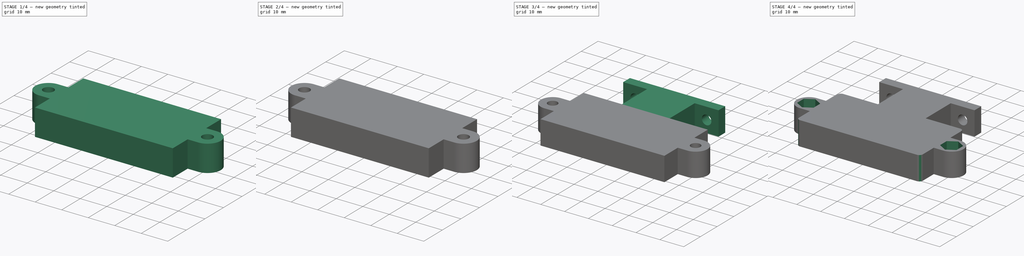
[diagram: build sequence overview — one tinted view per stage of 4, left to right]
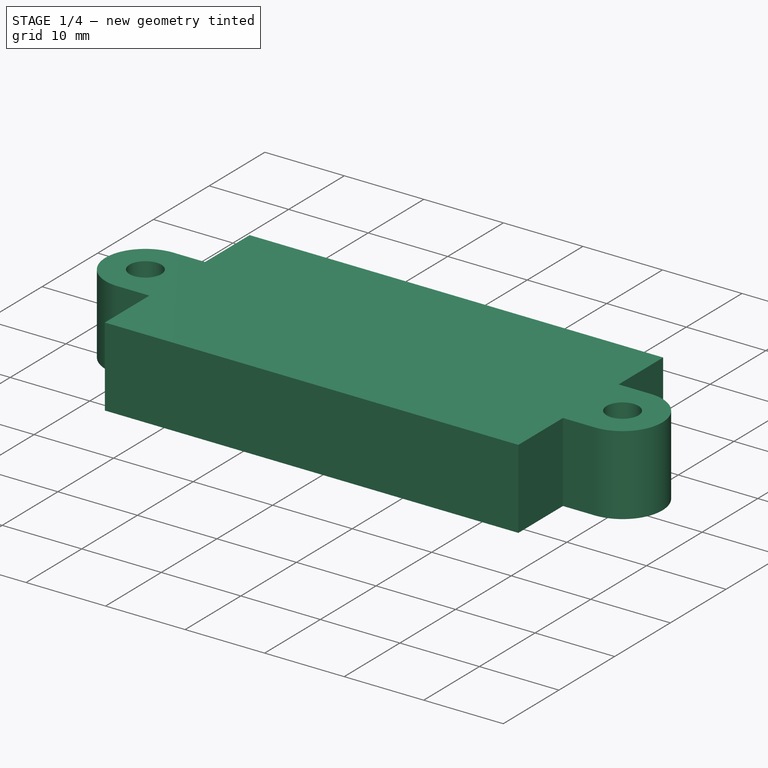
[diagram: stage 1 of 4 — iso view after this stage's code; geometry added in this stage tinted green]
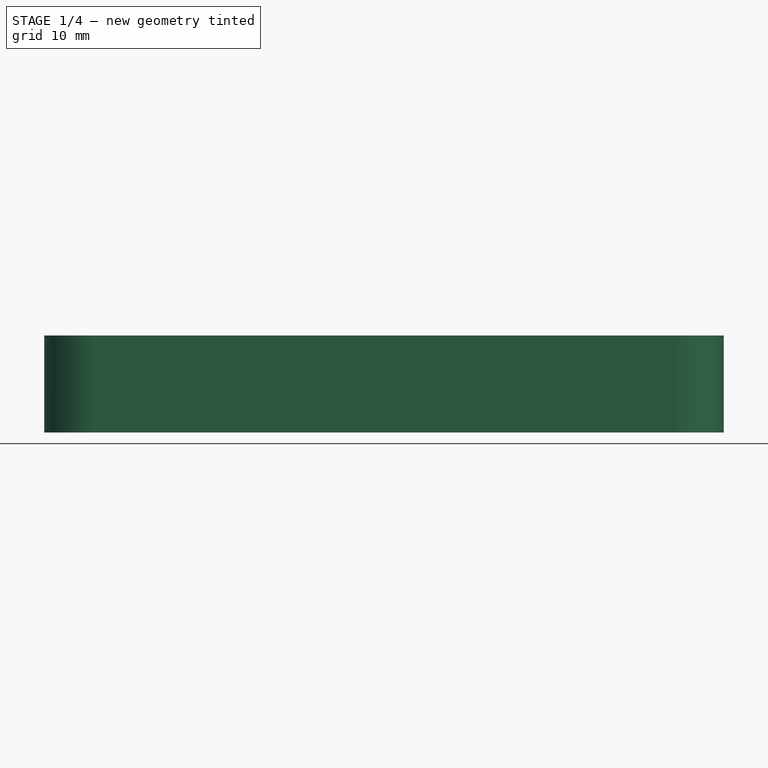
[diagram: stage 1 of 4 — front view after this stage's code; geometry added in this stage tinted green]
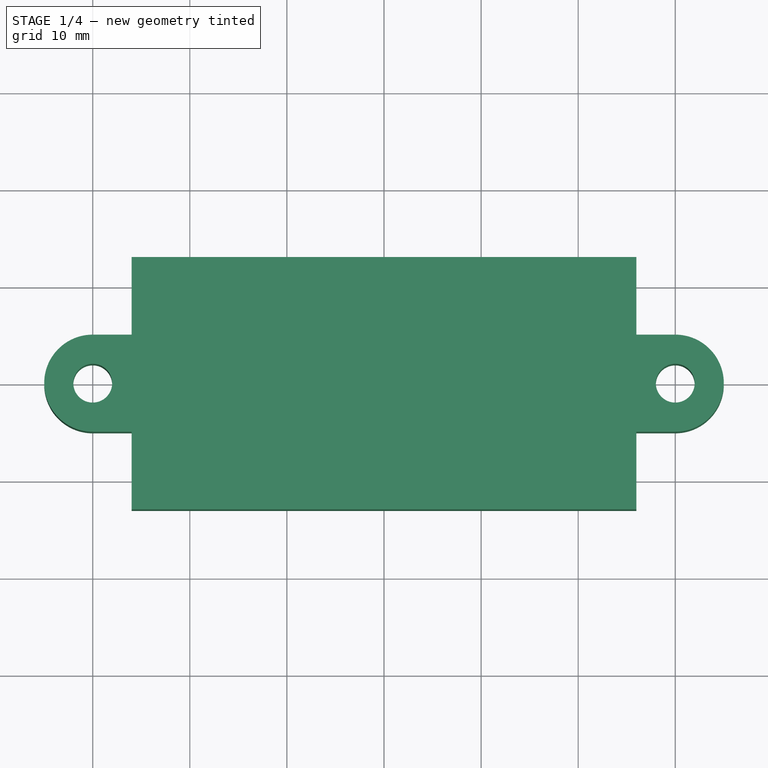
[diagram: stage 1 of 4 — top view after this stage's code; geometry added in this stage tinted green]
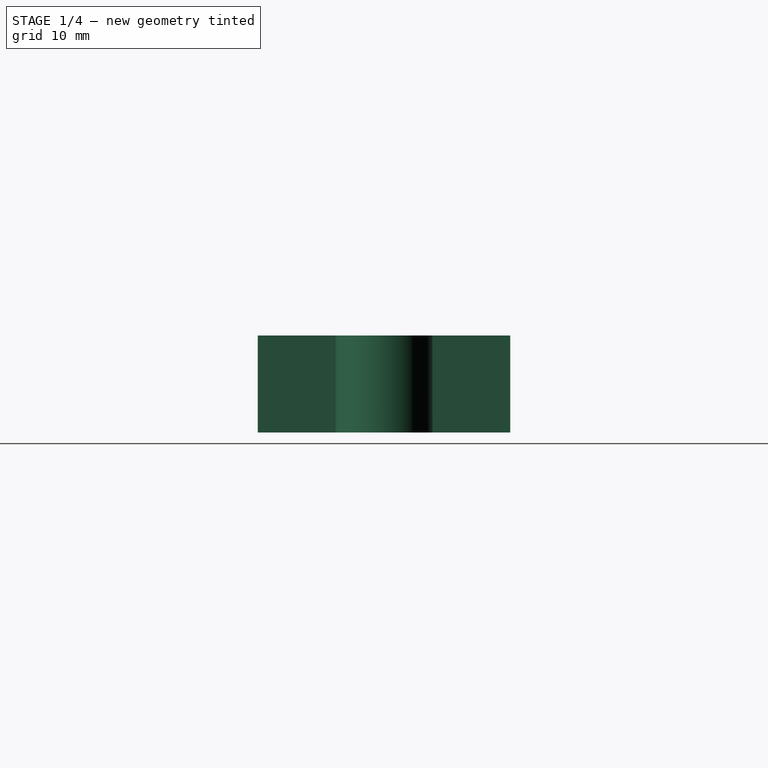
[diagram: stage 1 of 4 — right view after this stage's code; geometry added in this stage tinted green]
FCSTD DOCUMENT  (FreeCAD 1.1R44227 +322 (Git))
Label: box
License: All rights reserved
LicenseURL: https://en.wikipedia.org/wiki/All_rights_reserved
objects: Sketcher::SketchObject×9, PartDesign::Pocket×5, PartDesign::Pad×4, App::Point×1, PartDesign::Fillet×1, PartDesign::Body×1
note: 49 computed .brp shape members not serialized (recipe doc carries the construction recipe); baked Part::Feature solids carry a one-line shape summary decoded from their .brp

FEATURE [Sketcher::SketchObject] Sketch001  label="эскиз002"
  ArcFitTolerance = 0
  ExternalTypes = [0]
  FullyConstrained = true
  MakeInternals = false
  sketch-geometry (14):
    g0: LineSegment StartX=-26 StartY=13 StartZ=0 EndX=26 EndY=13 EndZ=0
    g1: LineSegment StartX=-26 StartY=-13 StartZ=0 EndX=26 EndY=-13 EndZ=0
    g2: Circle CenterX=-30 CenterY=0 CenterZ=0 NormalX=0 NormalY=0 NormalZ=1 AngleXU=0 Radius=2
    g3: ArcOfCircle CenterX=-30 CenterY=0 CenterZ=0 NormalX=0 NormalY=0 NormalZ=1 AngleXU=0 Radius=5 StartAngle=1.5708 EndAngle=4.71239
    g4: LineSegment StartX=-30 StartY=5 StartZ=0 EndX=-26 EndY=5 EndZ=0
    g5: LineSegment StartX=-30 StartY=-5 StartZ=0 EndX=-26 EndY=-5 EndZ=0
    g6: Circle CenterX=30 CenterY=0 CenterZ=0 NormalX=0 NormalY=0 NormalZ=1 AngleXU=0 Radius=2
    g7: ArcOfCircle CenterX=30 CenterY=0 CenterZ=0 NormalX=0 NormalY=0 NormalZ=1 AngleXU=0 Radius=5 StartAngle=4.71239 EndAngle=7.85398
    g8: LineSegment StartX=30 StartY=5 StartZ=0 EndX=26 EndY=5 EndZ=0
    g9: LineSegment StartX=30 StartY=-5 StartZ=0 EndX=26 EndY=-5 EndZ=0
    g10: LineSegment StartX=-26 StartY=13 StartZ=0 EndX=-26 EndY=5 EndZ=0
    g11: LineSegment StartX=-26 StartY=-5 StartZ=0 EndX=-26 EndY=-13 EndZ=0
    g12: LineSegment StartX=26 StartY=13 StartZ=0 EndX=26 EndY=5 EndZ=0
    g13: LineSegment StartX=26 StartY=-5 StartZ=0 EndX=26 EndY=-13 EndZ=0
  constraints (43):
    c: DistanceY(g1,g0) = 26
    c: Horizontal(g0)
    c: DistanceX(g0,g0) = 52
    c: Horizontal(g1)
    c: Distance(g-1,g0) = 13
    c: PointOnObject(g2,g-1)
    c: Diameter(g2) = 4
    c: Distance(g-1,g2) = 30
    c: Coincident(g3,g2)
    c: Radius(g3) = 5
    c: Coincident(g4,g3)
    c: Horizontal(g4)
    c: Coincident(g5,g3)
    c: Horizontal(g5)
    c: DistanceX(g4,g4) = 4
    c: DistanceX(g5,g5) = 4
    c: PointOnObject(g6,g-1)
    c: Diameter(g6) = 4
    c: Distance(g-1,g6) = 30
    c: PointOnObject(g7,g-1)
    c: Radius(g7) = 5
    c: Coincident(g8,g7)
    c: Horizontal(g8)
    c: Coincident(g9,g7)
    c: Horizontal(g9)
    c: DistanceX(g8,g8) = 4
    c: DistanceX(g9,g9) = 4
    c: Distance(g-1,g8) = 5
    c: Distance(g-1,g9) = 5
    c: Coincident(g10,g0)
    c: Coincident(g10,g4)
    c: Vertical(g10)
    c: Coincident(g11,g5)
    c: Coincident(g11,g1)
    c: Vertical(g11)
    c: Coincident(g12,g0)
    c: Coincident(g12,g8)
    c: Vertical(g12)
    c: Coincident(g13,g9)
    c: Coincident(g13,g1)
    c: Vertical(g13)
    c: DistanceY(g10,g10) = 8
    c: Distance(g-1,g11) = 26
FEATURE [PartDesign::Pad] Pad  label="контейнер для датчика"
  Direction = (0,0,1)
  Length = 10
  Length2 = 10
  Profile = -> Sketch001
  ReferenceAxis = -> Sketch001 [N_Axis]
  SideType = 0
  Suppressed = false
  Type = 0
  Type2 = 0
FEATURE [Sketcher::SketchObject] Sketch003  label="эскиз"
  ArcFitTolerance = 0
  ExternalTypes = [0]
  FullyConstrained = true
  MakeInternals = false
  sketch-geometry (4):
    g0: LineSegment StartX=-24 StartY=11 StartZ=0 EndX=24 EndY=11 EndZ=0
    g1: LineSegment StartX=-24 StartY=11 StartZ=0 EndX=-24 EndY=-11 EndZ=0
    g2: LineSegment StartX=24 StartY=11 StartZ=0 EndX=24 EndY=-11 EndZ=0
    g3: LineSegment StartX=-24 StartY=-11 StartZ=0 EndX=24 EndY=-11 EndZ=0
  constraints (12):
    c: Horizontal(g0)
    c: DistanceX(g0,g0) = 48
    c: Coincident(g1,g0)
    c: Vertical(g1)
    c: DistanceY(g1,g1) = 22
    c: Coincident(g2,g0)
    c: Vertical(g2)
    c: Coincident(g3,g1)
    c: Coincident(g3,g2)
    c: Horizontal(g3)
    c: Distance(g-1,g0) = 11
    c: Distance(g-1,g1) = 24
FEATURE [PartDesign::Pocket] Pocket  label="главный вырез"
  AlongSketchNormal = false
  BaseFeature = -> Pad
  Direction = (0,0,-1)
  Length = 14
  Length2 = 5
  Profile = -> Sketch003
  ReferenceAxis = -> Sketch003 [N_Axis]
  SideType = 2
  Suppressed = false
  Type = 0
  Type2 = 0
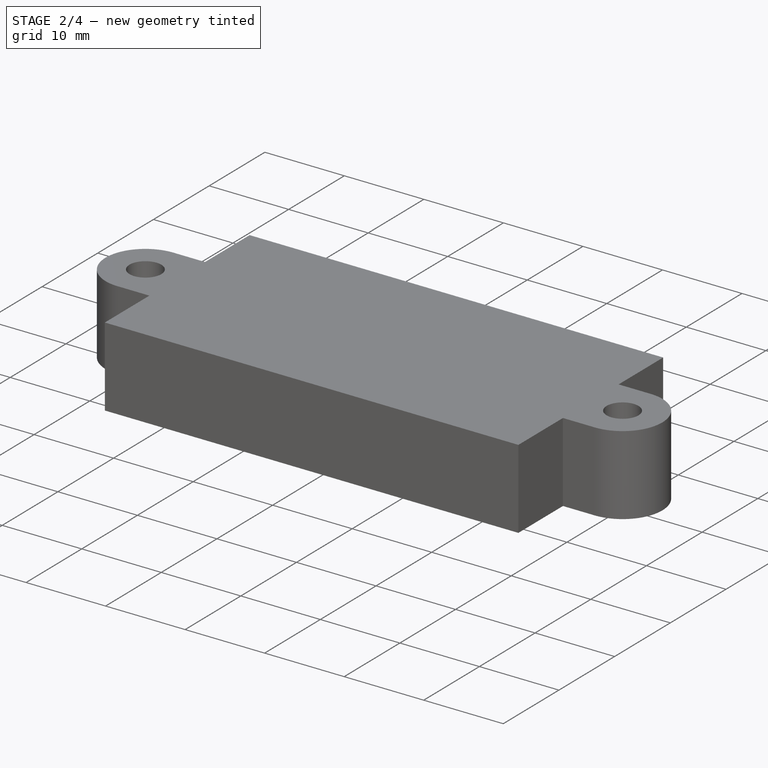
[diagram: stage 2 of 4 — iso view after this stage's code; geometry added in this stage tinted green]
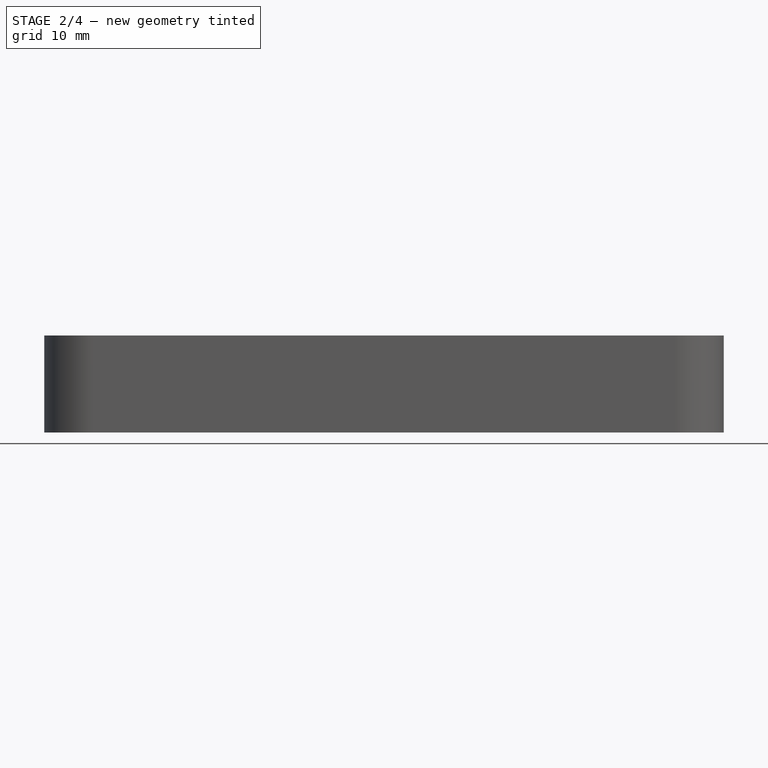
[diagram: stage 2 of 4 — front view after this stage's code; geometry added in this stage tinted green]
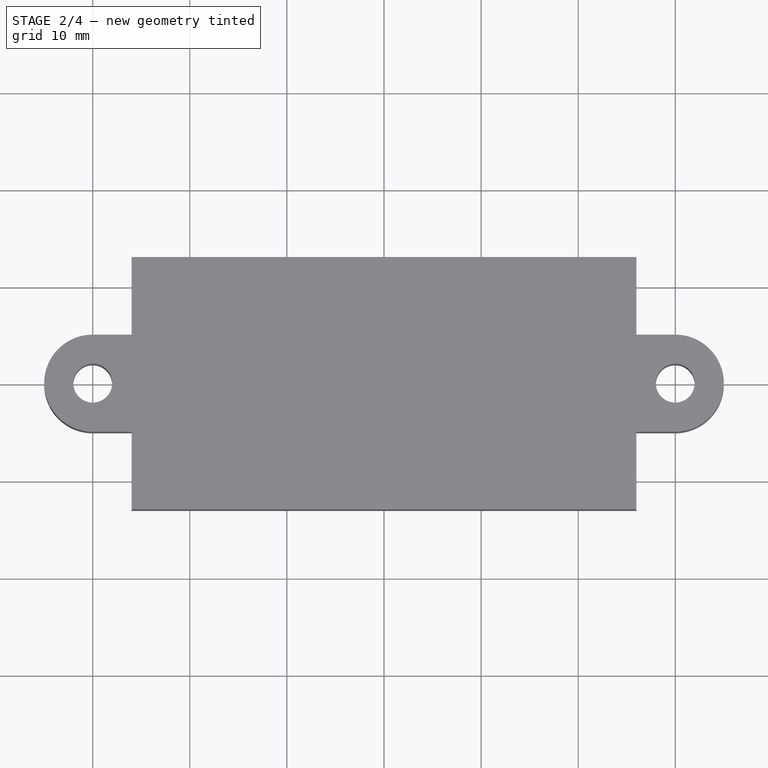
[diagram: stage 2 of 4 — top view after this stage's code; geometry added in this stage tinted green]
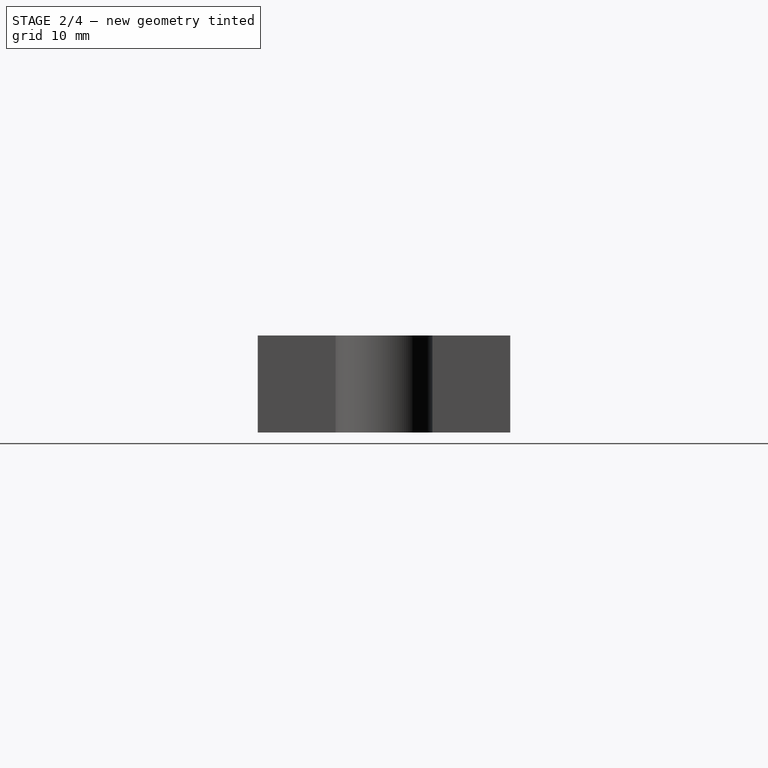
[diagram: stage 2 of 4 — right view after this stage's code; geometry added in this stage tinted green]
FEATURE [Sketcher::SketchObject] Sketch004  label="эскиз001"
  ArcFitTolerance = 0
  ExternalTypes = [0]
  FullyConstrained = true
  MakeInternals = false
  sketch-geometry (8):
    g0: Circle CenterX=-21.25 CenterY=8.5 CenterZ=0 NormalX=0 NormalY=0 NormalZ=1 AngleXU=0 Radius=1
    g1: Circle CenterX=-21.25 CenterY=-8.5 CenterZ=0 NormalX=0 NormalY=0 NormalZ=1 AngleXU=0 Radius=1
    g2: Circle CenterX=21.25 CenterY=8.5 CenterZ=0 NormalX=0 NormalY=0 NormalZ=1 AngleXU=0 Radius=1
    g3: Circle CenterX=21.25 CenterY=-8.5 CenterZ=0 NormalX=0 NormalY=0 NormalZ=1 AngleXU=0 Radius=1
    g4: Circle CenterX=21.25 CenterY=8.5 CenterZ=0 NormalX=0 NormalY=0 NormalZ=1 AngleXU=0 Radius=2
    g5: Circle CenterX=-21.25 CenterY=8.5 CenterZ=0 NormalX=0 NormalY=0 NormalZ=1 AngleXU=0 Radius=2
    g6: Circle CenterX=-21.25 CenterY=-8.5 CenterZ=0 NormalX=0 NormalY=0 NormalZ=1 AngleXU=0 Radius=2
    g7: Circle CenterX=21.25 CenterY=-8.5 CenterZ=0 NormalX=0 NormalY=0 NormalZ=1 AngleXU=0 Radius=2
  constraints (17):
    c: Diameter(g0) = 2
    c: Diameter(g1) = 2
    c: Diameter(g2) = 2
    c: Diameter(g3) = 2
    c: Diameter(g4) = 4
    c: Coincident(g4,g2)
    c: Diameter(g5) = 4
    c: Coincident(g5,g0)
    c: Diameter(g6) = 4
    c: Coincident(g6,g1)
    c: Diameter(g7) = 4
    c: Coincident(g7,g3)
    c: DistanceX(g-2,g0) = -21.25
    c: Distance(g0,g-1) = 8.5
    c: Symmetric(g0,g1,g-1)
    c: Symmetric(g2,g0,g-2)
    c: Symmetric(g1,g3,g-2)
FEATURE [PartDesign::Pad] Pad001  label="стойки"
  BaseFeature = -> Pocket
  Direction = (0,0,1)
  Length = 10
  Length2 = 10
  Profile = -> Sketch004
  ReferenceAxis = -> Sketch004 [N_Axis]
  SideType = 0
  Suppressed = false
  Type = 0
  Type2 = 0
FEATURE [Sketcher::SketchObject] Sketch006  label="внутренняя фаска"
  ArcFitTolerance = 0
  ExternalTypes = [0]
  FullyConstrained = true
  MakeInternals = false
  sketch-geometry (4):
    g0: LineSegment StartX=-25 StartY=12 StartZ=0 EndX=25 EndY=12 EndZ=0
    g1: LineSegment StartX=-25 StartY=-12 StartZ=0 EndX=25 EndY=-12 EndZ=0
    g2: LineSegment StartX=-25 StartY=-12 StartZ=0 EndX=-25 EndY=12 EndZ=0
    g3: LineSegment StartX=25 StartY=-12 StartZ=0 EndX=25 EndY=12 EndZ=0
  constraints (13):
    c: Horizontal(g0)
    c: DistanceX(g0,g0) = 50
    c: Horizontal(g1)
    c: DistanceX(g1,g1) = 50
    c: Vertical(g2)
    c: Vertical(g3)
    c: DistanceY(g2,g2) = 24
    c: DistanceY(g3,g3) = 24
    c: Coincident(g2,g1)
    c: Coincident(g2,g0)
    c: Coincident(g3,g1)
    c: Distance(g-1,g2) = 25
    c: Distance(g-1,g1) = 12
FEATURE [PartDesign::Pocket] Pocket001  label="внутренняя фаска под крышку"
  BaseFeature = -> Pad001
  Direction = (0,0,-1)
  Length = 2
  Length2 = 5
  Profile = -> Sketch006
  ReferenceAxis = -> Sketch006 [N_Axis]
  SideType = 2
  Suppressed = false
  Type = 0
  Type2 = 0
  UseCustomVector = true
FEATURE [Sketcher::SketchObject] Sketch013
  ArcFitTolerance = 0
  AttachmentSupport = -> [Pocket001]
  ExternalTypes = [0]
  FullyConstrained = true
  MakeInternals = false
  MapMode = 5
  Placement = pos=(0,0,0) rot=(1,0,0;3.14159rad)
  sketch-geometry (4):
    g0: LineSegment StartX=-24 StartY=11 StartZ=0 EndX=-24 EndY=-11 EndZ=0
    g1: LineSegment StartX=-24 StartY=-11 StartZ=0 EndX=24 EndY=-11 EndZ=0
    g2: LineSegment StartX=24 StartY=-11 StartZ=0 EndX=24 EndY=11 EndZ=0
    g3: LineSegment StartX=24 StartY=11 StartZ=0 EndX=-24 EndY=11 EndZ=0
  constraints (12):
    c: Vertical(g0)
    c: Coincident(g1,g0)
    c: Horizontal(g1)
    c: Coincident(g2,g1)
    c: Vertical(g2)
    c: Coincident(g3,g2)
    c: Coincident(g3,g0)
    c: Horizontal(g3)
    c: DistanceX(g3,g3) = 48
    c: DistanceY(g0,g0) = 22
    c: Distance(g-1,g3) = 11
    c: Distance(g-1,g0) = 24
FEATURE [PartDesign::Pocket] Pocket002  label="уменьшение высоты стоек"
  BaseFeature = -> Pocket001
  Direction = (0,0,1)
  Length = 2
  Length2 = 5
  Profile = -> Sketch013
  ReferenceAxis = -> Sketch013 [N_Axis]
  SideType = 0
  Suppressed = false
  Type = 0
  Type2 = 0
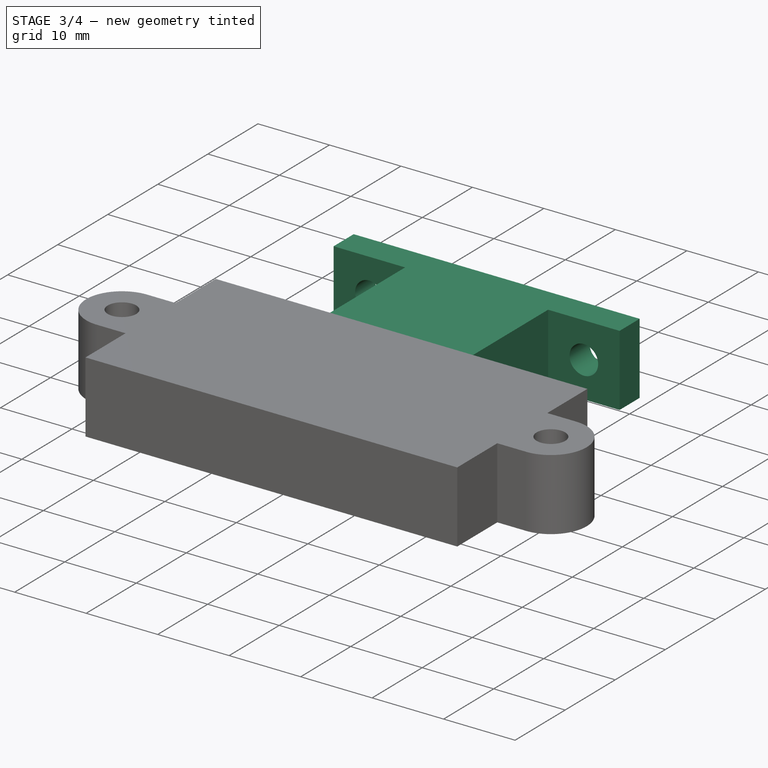
[diagram: stage 3 of 4 — iso view after this stage's code; geometry added in this stage tinted green]
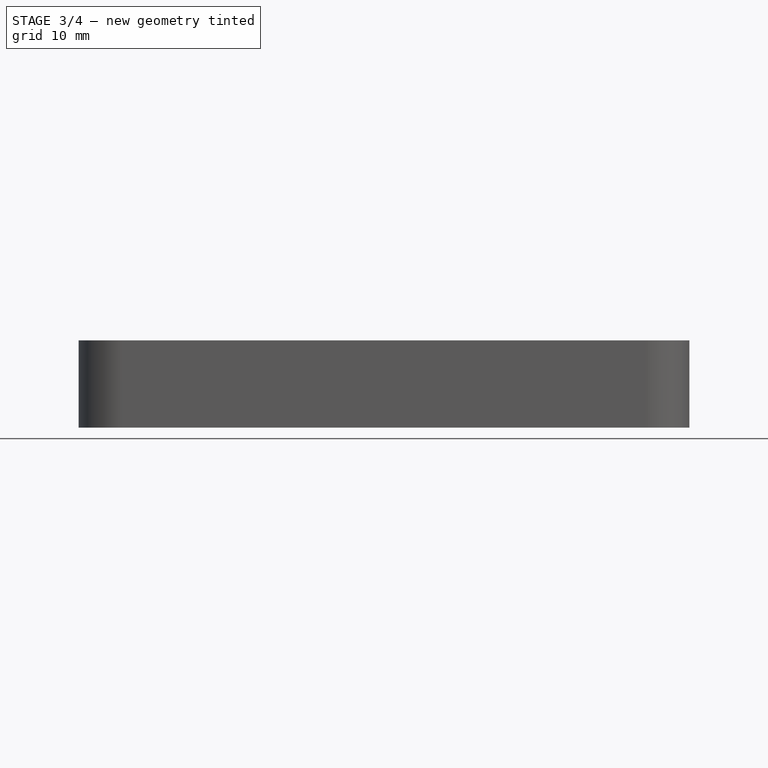
[diagram: stage 3 of 4 — front view after this stage's code; geometry added in this stage tinted green]
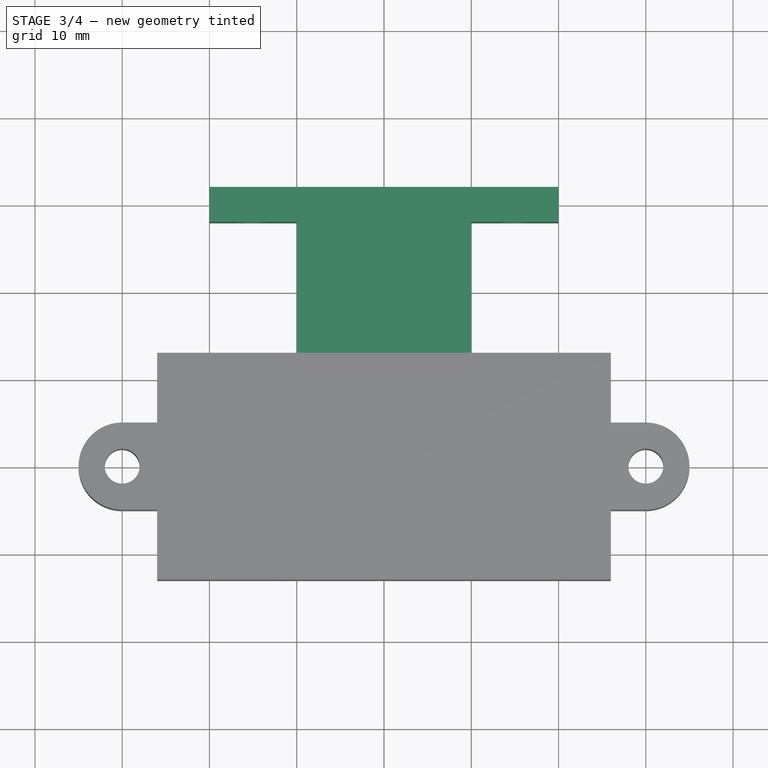
[diagram: stage 3 of 4 — top view after this stage's code; geometry added in this stage tinted green]
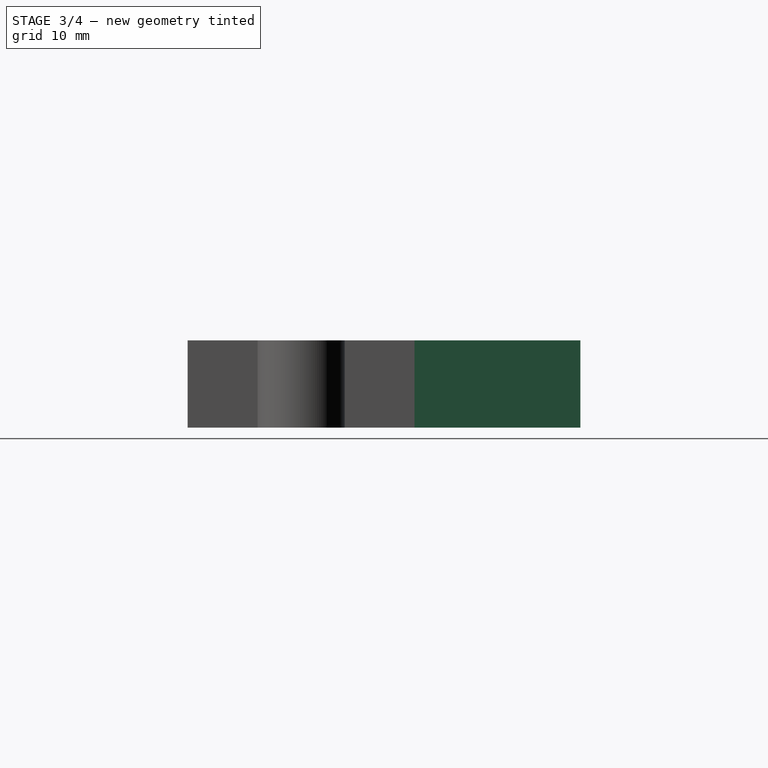
[diagram: stage 3 of 4 — right view after this stage's code; geometry added in this stage tinted green]
FEATURE [Sketcher::SketchObject] Sketch014
  ArcFitTolerance = 0
  AttachmentSupport = -> [Pocket002]
  ExternalTypes = [0]
  FullyConstrained = true
  MakeInternals = false
  MapMode = 5
  Placement = pos=(0,13,0) rot=(0,0.707107,0.707107;3.14159rad)
  sketch-geometry (4):
    g0: LineSegment StartX=-10 StartY=10 StartZ=0 EndX=-10 EndY=0 EndZ=0
    g1: LineSegment StartX=10 StartY=10 StartZ=0 EndX=10 EndY=0 EndZ=0
    g2: LineSegment StartX=-10 StartY=10 StartZ=0 EndX=10 EndY=10 EndZ=0
    g3: LineSegment StartX=-10 StartY=0 StartZ=0 EndX=10 EndY=0 EndZ=0
  constraints (14):
    c: PointOnObject(g0,g-1)
    c: Vertical(g0)
    c: PointOnObject(g1,g-1)
    c: Vertical(g1)
    c: Distance(g-1,g0) = 10
    c: Distance(g-1,g1) = 10
    c: DistanceY(g1,g1) = 10
    c: DistanceY(g0,g0) = 10
    c: Horizontal(g2)
    c: DistanceX(g2,g2) = 20
    c: Coincident(g2,g0)
    c: Horizontal(g3)
    c: DistanceX(g3,g3) = 20
    c: Coincident(g3,g1)
FEATURE [PartDesign::Pad] Pad002
  BaseFeature = -> Pocket002
  Direction = (0,1,-2e-16)
  Length = 15
  Length2 = 10
  Profile = -> Sketch014
  ReferenceAxis = -> Sketch014 [N_Axis]
  SideType = 0
  Suppressed = false
  Type = 0
  Type2 = 0
FEATURE [Sketcher::SketchObject] Sketch015
  ArcFitTolerance = 0
  AttachmentSupport = -> [Pad002]
  ExternalTypes = [0]
  FullyConstrained = true
  MakeInternals = false
  MapMode = 5
  Placement = pos=(0,28,0) rot=(0,0.707107,0.707107;3.14159rad)
  sketch-geometry (6):
    g0: LineSegment StartX=-20 StartY=10 StartZ=0 EndX=-20 EndY=0 EndZ=0
    g1: LineSegment StartX=20 StartY=10 StartZ=0 EndX=20 EndY=0 EndZ=0
    g2: LineSegment StartX=-20 StartY=10 StartZ=0 EndX=20 EndY=10 EndZ=0
    g3: LineSegment StartX=-20 StartY=0 StartZ=0 EndX=20 EndY=0 EndZ=0
    g4: Circle CenterX=-15 CenterY=5 CenterZ=0 NormalX=0 NormalY=0 NormalZ=1 AngleXU=0 Radius=2
    g5: Circle CenterX=15 CenterY=5 CenterZ=0 NormalX=0 NormalY=0 NormalZ=1 AngleXU=0 Radius=2
  constraints (20):
    c: PointOnObject(g0,g-1)
    c: Vertical(g0)
    c: PointOnObject(g1,g-1)
    c: Vertical(g1)
    c: DistanceY(g0,g0) = 10
    c: DistanceY(g1,g1) = 10
    c: Horizontal(g2)
    c: Horizontal(g3)
    c: Distance(g-1,g0) = 20
    c: Distance(g-1,g1) = 20
    c: Distance(g3) = 40
    c: Distance(g2) = 40
    c: Coincident(g2,g0)
    c: Coincident(g3,g0)
    c: Diameter(g4) = 4
    c: Diameter(g5) = 4
    c: Distance(g4,g2) = 5
    c: Distance(g4,g0) = 5
    c: Distance(g5,g2) = 5
    c: Distance(g5,g1) = 5
FEATURE [PartDesign::Pad] Pad003
  BaseFeature = -> Pad002
  Direction = (0,1,-2e-16)
  Length = 4
  Length2 = 10
  Profile = -> Sketch015
  ReferenceAxis = -> Sketch015 [N_Axis]
  SideType = 0
  Suppressed = false
  Type = 0
  Type2 = 0
FEATURE [Sketcher::SketchObject] Sketch016
  ArcFitTolerance = 0
  AttachmentSupport = -> [Pad003]
  ExternalTypes = [0]
  FullyConstrained = true
  MakeInternals = false
  MapMode = 5
  Placement = pos=(0,13,0) rot=(0,0.707107,0.707107;3.14159rad)
  sketch-geometry (4):
    g0: LineSegment StartX=-7 StartY=7 StartZ=0 EndX=7 EndY=7 EndZ=0
    g1: LineSegment StartX=-7 StartY=3 StartZ=0 EndX=7 EndY=3 EndZ=0
    g2: LineSegment StartX=-7 StartY=7 StartZ=0 EndX=-7 EndY=3 EndZ=0
    g3: LineSegment StartX=7 StartY=7 StartZ=0 EndX=7 EndY=3 EndZ=0
  constraints (14):
    c: Horizontal(g0)
    c: Horizontal(g1)
    c: Vertical(g2)
    c: Vertical(g3)
    c: DistanceY(g2,g2) = 4
    c: DistanceX(g0,g0) = 14
    c: DistanceX(g1,g1) = 14
    c: DistanceY(g3,g3) = 4
    c: Distance(g-1,g2) = 7
    c: Distance(g-1,g3) = 7
    c: Coincident(g1,g2)
    c: Distance(g-1,g1) = 3
    c: Coincident(g0,g3)
    c: Distance(g-1,g0) = 7
FEATURE [PartDesign::Pocket] Pocket003
  BaseFeature = -> Pad003
  Direction = (0,-1,2e-16)
  Length = 21
  Length2 = 5
  Profile = -> Sketch016
  ReferenceAxis = -> Sketch016 [N_Axis]
  Reversed = true
  SideType = 1
  Suppressed = false
  Type = 0
  Type2 = 0
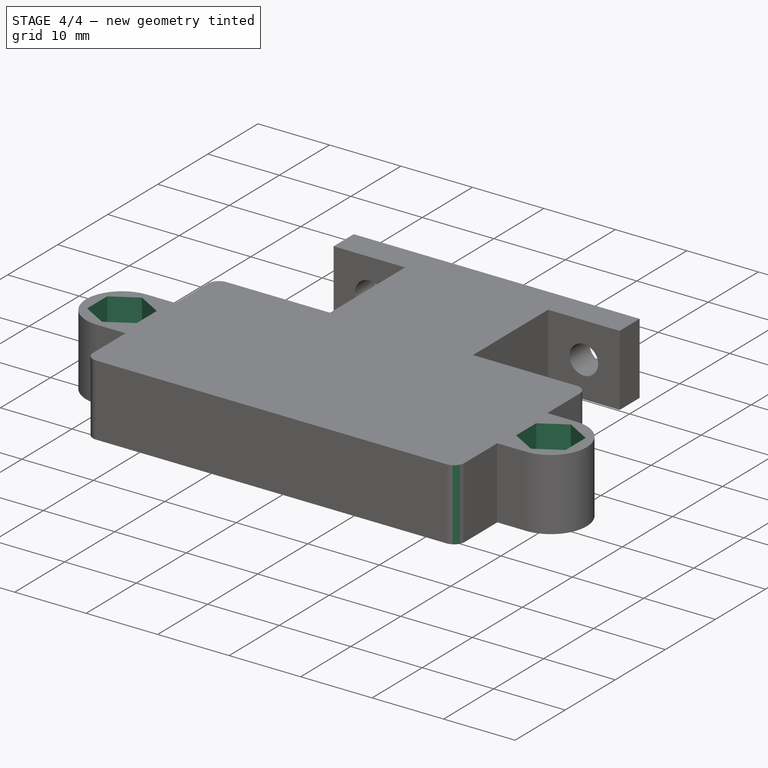
[diagram: stage 4 of 4 — iso view after this stage's code; geometry added in this stage tinted green]
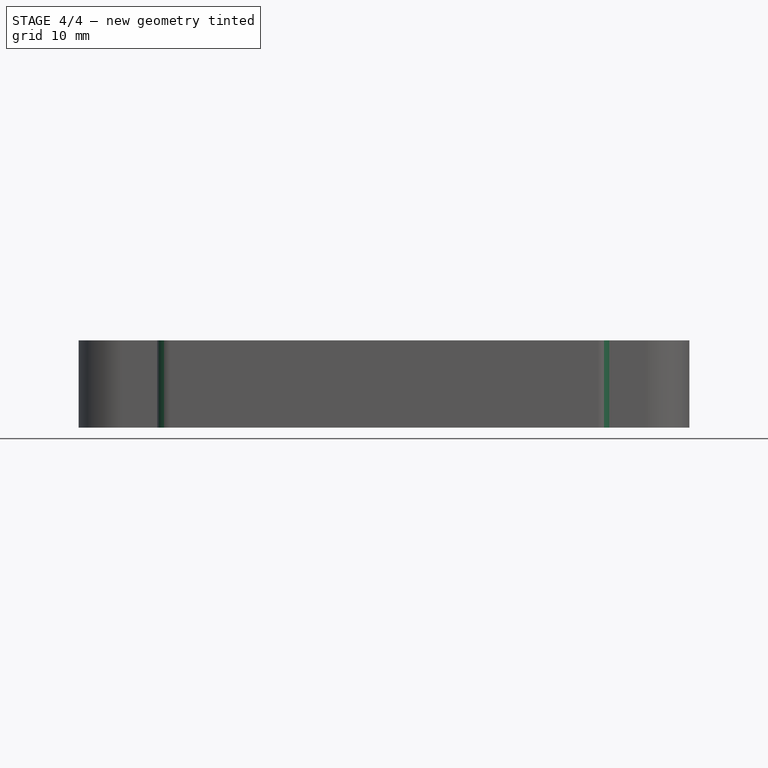
[diagram: stage 4 of 4 — front view after this stage's code; geometry added in this stage tinted green]
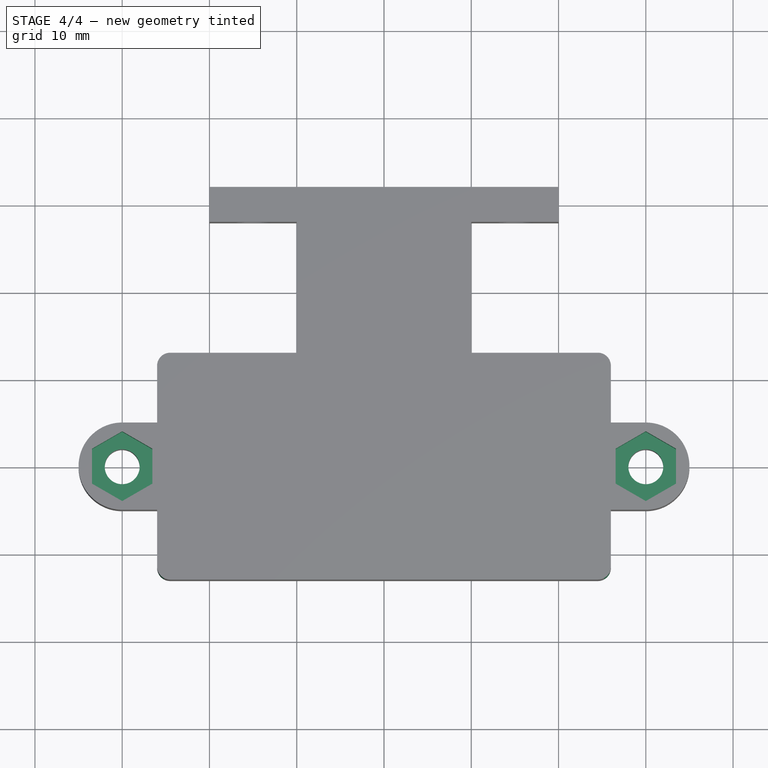
[diagram: stage 4 of 4 — top view after this stage's code; geometry added in this stage tinted green]
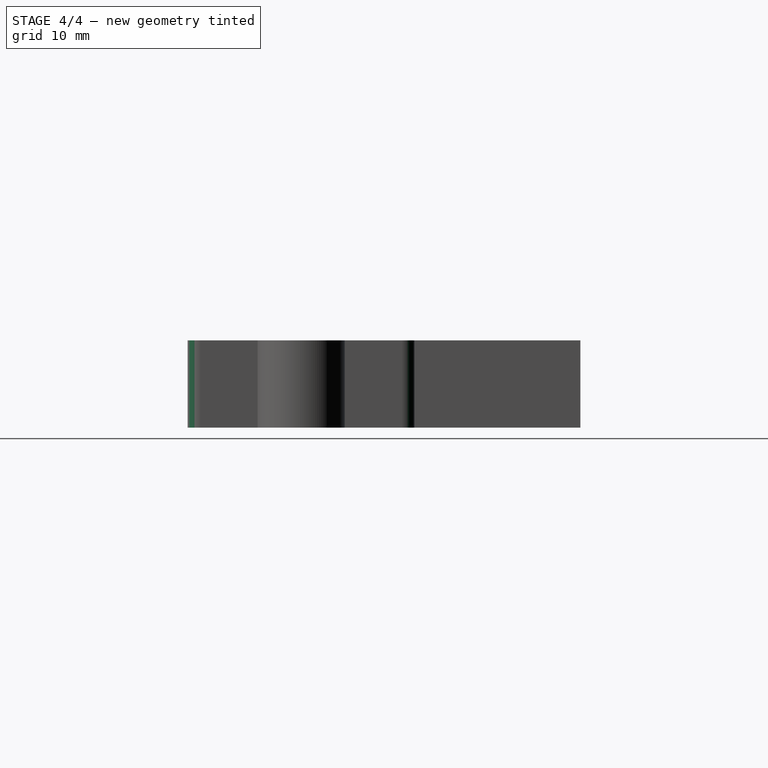
[diagram: stage 4 of 4 — right view after this stage's code; geometry added in this stage tinted green]
FEATURE [Sketcher::SketchObject] Sketch
  ArcFitTolerance = 1e-06
  AttachmentSupport = -> [Pocket003]
  ExternalTypes = [0]
  FullyConstrained = true
  MakeInternals = false
  MapMode = 5
  Placement = pos=(0,0,10) rot=(0,0,1;0rad)
  sketch-geometry (14):
    g0: LineSegment StartX=-33.4641 StartY=2 StartZ=0 EndX=-33.4641 EndY=-2 EndZ=0
    g1: LineSegment StartX=-33.4641 StartY=-2 StartZ=0 EndX=-30 EndY=-4 EndZ=0
    g2: LineSegment StartX=-30 StartY=-4 StartZ=0 EndX=-26.5359 EndY=-2 EndZ=0
    g3: LineSegment StartX=-26.5359 StartY=-2 StartZ=0 EndX=-26.5359 EndY=2 EndZ=0
    g4: LineSegment StartX=-26.5359 StartY=2 StartZ=0 EndX=-30 EndY=4 EndZ=0
    g5: LineSegment StartX=-30 StartY=4 StartZ=0 EndX=-33.4641 EndY=2 EndZ=0
    g6: Circle [constr] CenterX=-30 CenterY=0 CenterZ=0 NormalX=0 NormalY=0 NormalZ=1 AngleXU=0 Radius=4
    g7: LineSegment StartX=26.5359 StartY=2 StartZ=0 EndX=26.5359 EndY=-2 EndZ=0
    g8: LineSegment StartX=26.5359 StartY=-2 StartZ=0 EndX=30 EndY=-4 EndZ=0
    g9: LineSegment StartX=30 StartY=-4 StartZ=0 EndX=33.4641 EndY=-2 EndZ=0
    g10: LineSegment StartX=33.4641 StartY=-2 StartZ=0 EndX=33.4641 EndY=2 EndZ=0
    g11: LineSegment StartX=33.4641 StartY=2 StartZ=0 EndX=30 EndY=4 EndZ=0
    g12: LineSegment StartX=30 StartY=4 StartZ=0 EndX=26.5359 EndY=2 EndZ=0
    g13: Circle [constr] CenterX=30 CenterY=0 CenterZ=0 NormalX=0 NormalY=0 NormalZ=1 AngleXU=0 Radius=4
  constraints (34):
    c: Coincident(g0,g1)
    c: Coincident(g1,g2)
    c: Coincident(g2,g3)
    c: Coincident(g3,g4)
    c: Coincident(g4,g5)
    c: Coincident(g5,g0)
    c: Equal(g0, g1-g5) x5
    c: PointOnObject(g0,g6)
    c: PointOnObject(g1,g6)
    c: PointOnObject(g2,g6)
    c: PointOnObject(g3,g6)
    c: PointOnObject(g4,g6)
    c: PointOnObject(g5,g6)
    c: PointOnObject(g6,g-1)
    c: Coincident(g7,g8)
    c: Coincident(g8,g9)
    c: Coincident(g9,g10)
    c: Coincident(g10,g11)
    c: Coincident(g11,g12)
    c: Coincident(g12,g7)
    c: Equal(g7, g8-g12) x5
    c: PointOnObject(g7,g13)
    c: PointOnObject(g8,g13)
    c: PointOnObject(g9,g13)
    c: PointOnObject(g10,g13)
    c: PointOnObject(g11,g13)
    c: PointOnObject(g12,g13)
    c: PointOnObject(g13,g-1)
    c: Vertical(g0)
    c: Diameter(g6) = 8
    c: Vertical(g10)
    c: Equal(g13,g6)
    c: Distance(g6,g-2) = 30
    c: Distance(g13,g-2) = 30
FEATURE [PartDesign::Pocket] Pocket004
  BaseFeature = -> Pocket003
  Direction = (0,0,-1)
  Length = 4
  Length2 = 5
  Profile = -> Sketch
  ReferenceAxis = -> Sketch [N_Axis]
  Refine = true
  SideType = 0
  Suppressed = false
  Type = 0
  Type2 = 0
FEATURE [App::Point] Origin001  label="Origin"
  Role = Origin
FEATURE [PartDesign::Fillet] Fillet
  Base = -> Pocket004 [Edge24,Edge2,Edge36,Edge33]
  BaseFeature = -> Pocket004
  Radius = 1.5
  Refine = true
  SupportTransform = false
  Suppressed = false
  UseAllEdges = false
FEATURE [PartDesign::Body] Body  label="hc-sr04-box"
  AllowCompound = false
  Group = -> [Sketch001,Sketch003,Pad,Pocket,Sketch004,Pad001,Sketch006,Pocket001,Sketch013,Pocket002,Sketch014,Pad002,Sketch015,Pad003,Sketch016,Pocket003,Sketch,Pocket004,Fillet]
  Origin = -> Origin
  Tip = -> Fillet
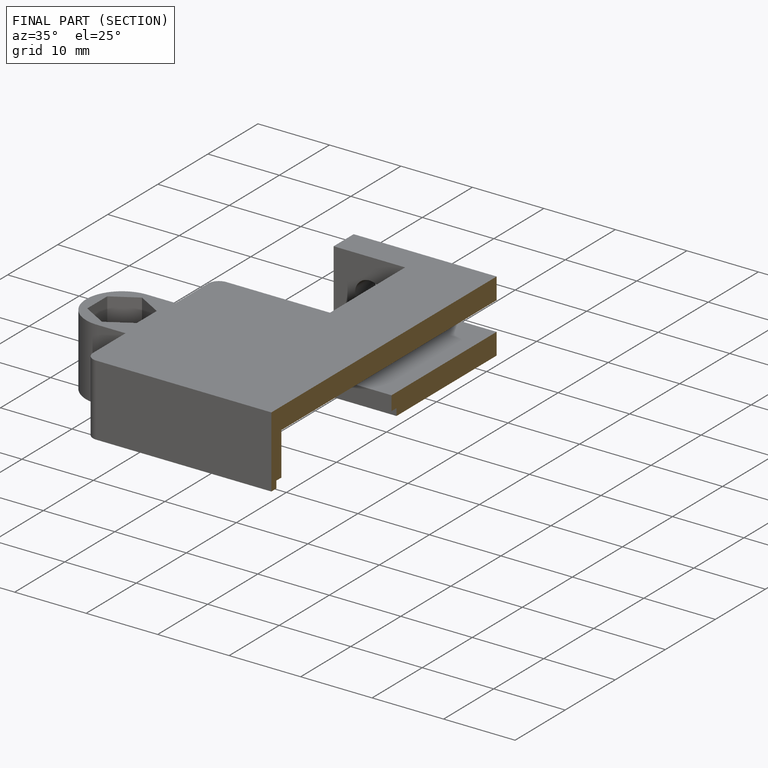
[diagram: finished part — half-section view (interior)]
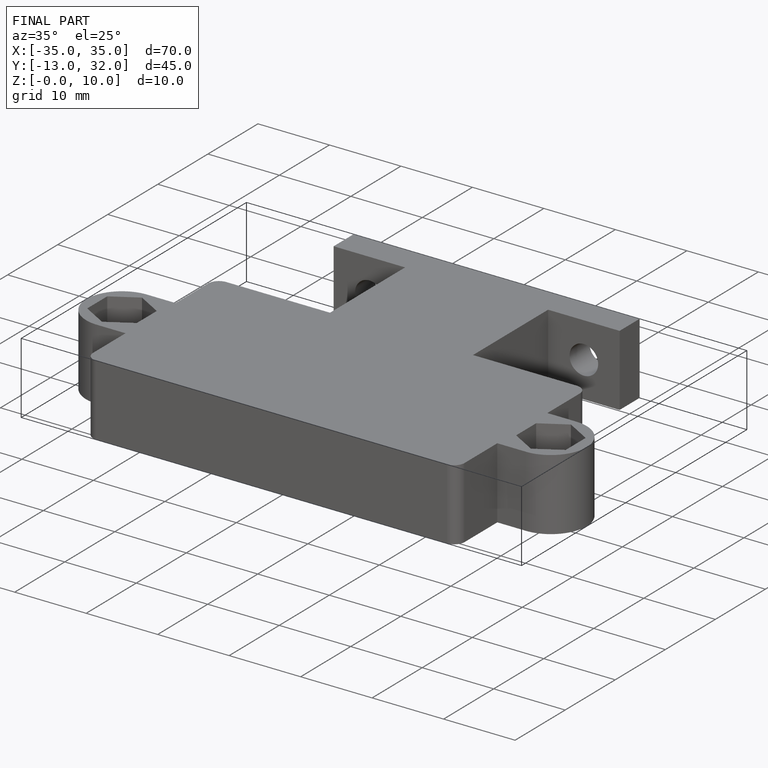
[diagram: finished part — iso view with bounding-box wireframe]
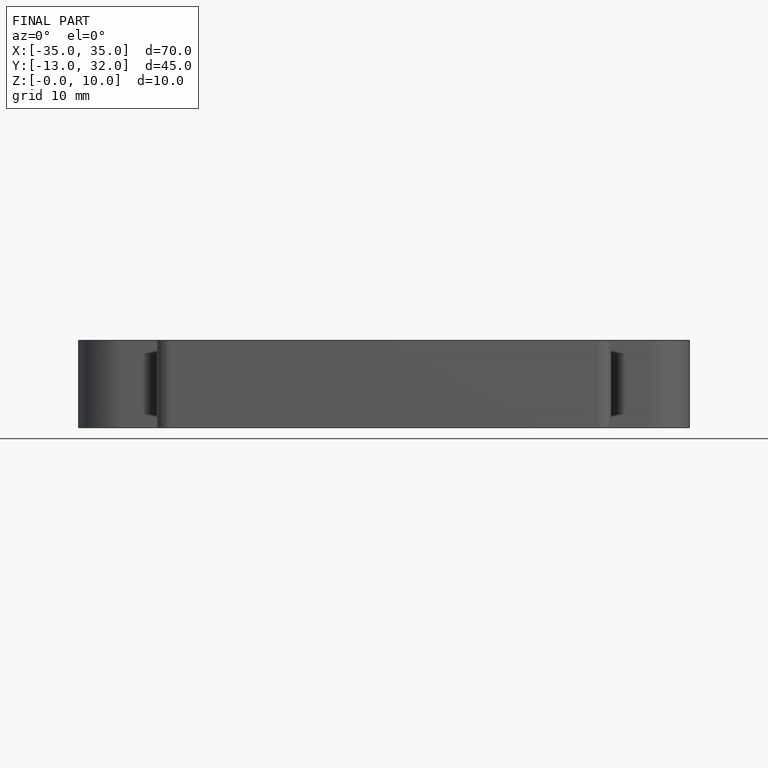
[diagram: finished part — front view with bounding-box wireframe]
